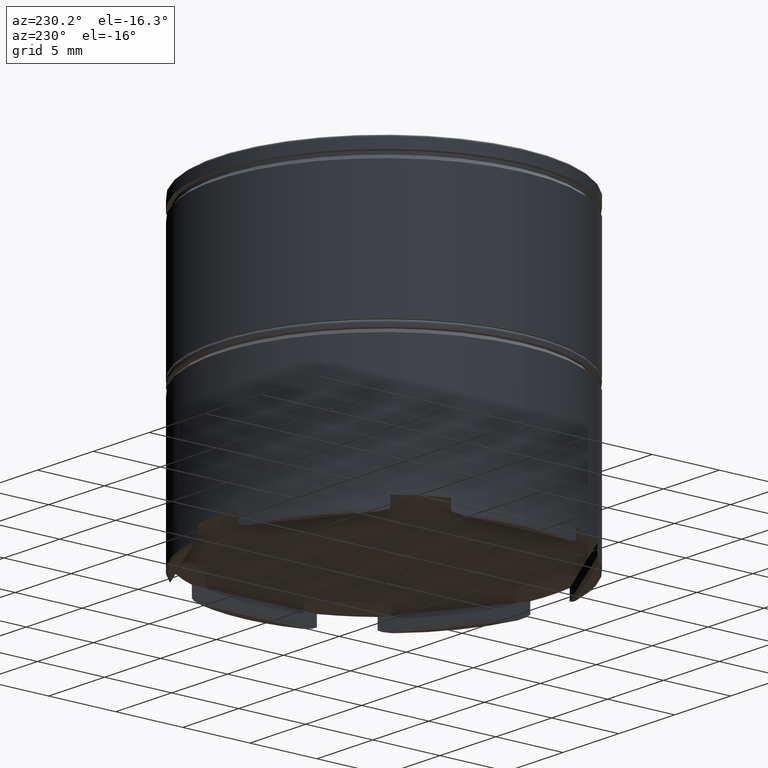
[diagram: clean part render]
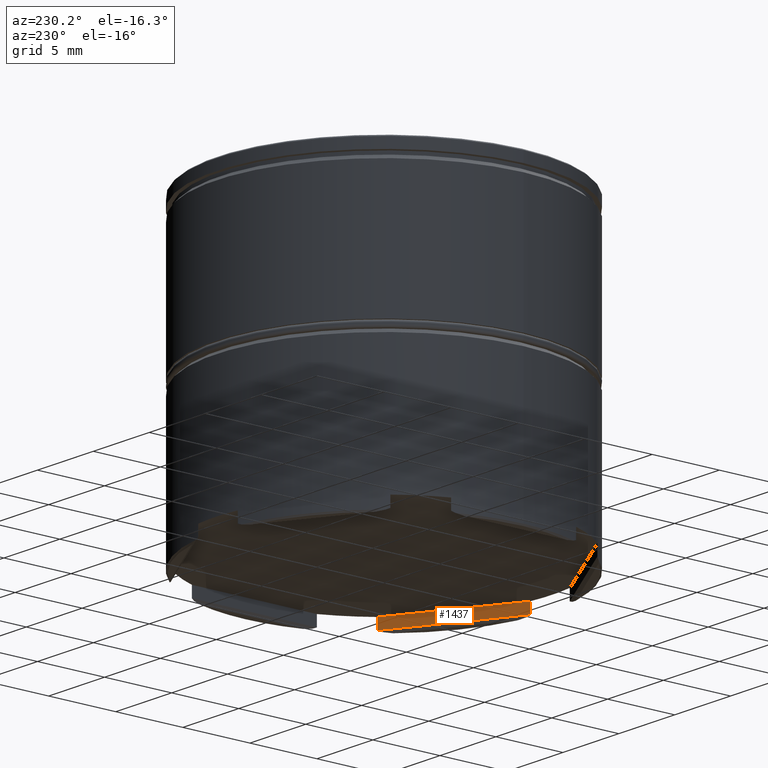
[diagram: same view with one face highlighted and labeled with its STEP entity id]
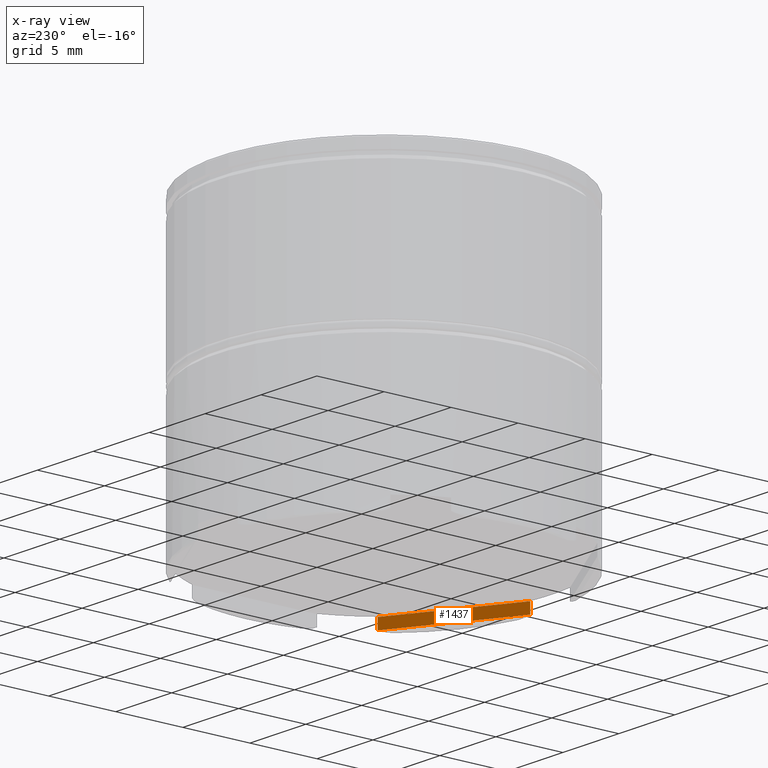
[diagram: x-ray of the same camera — body ghosted, the highlighted face saturated]
A machine part, auxiliary view. The second image highlights one B-rep face of the part: STEP entity #1437.
The next image is the same camera in x-ray: the body ghosted, the highlighted face saturated — about 0% of this face is hidden behind the body in this view.
In plain terms, the highlighted planar face has unit normal (0.5, -0.866, 0).
Its self-contained STEP definition (entity closure, byte-faithful):
#27 = CARTESIAN_POINT ( 'NONE',  ( 1.766701102075388885, -12.37452088833849118, -22.29999999999999716 ) ) ;
#46 = CARTESIAN_POINT ( 'NONE',  ( 9.833298897924615645, -7.717268479460500430, -22.29999999999999716 ) ) ;
#171 = CARTESIAN_POINT ( 'NONE',  ( 9.833298897924615645, -7.717268479460500430, 0.000000000000000000 ) ) ;
#183 = EDGE_CURVE ( 'NONE', #199, #1464, #1169, .T. ) ;
#199 = VERTEX_POINT ( 'NONE', #46 ) ;
#306 = AXIS2_PLACEMENT_3D ( 'NONE', #932, #681, #545 ) ;
#307 = CARTESIAN_POINT ( 'NONE',  ( 9.833298897924617421, -7.717268479460498654, -21.50000000000000000 ) ) ;
#308 = CARTESIAN_POINT ( 'NONE',  ( 1.766701102075386220, -12.37452088833849295, -21.50000000000000000 ) ) ;
#319 = LINE ( 'NONE', #171, #756 ) ;
#352 = DIRECTION ( 'NONE',  ( -0.8660254037844387076, -0.4999999999999998890, 0.000000000000000000 ) ) ;
#363 = ORIENTED_EDGE ( 'NONE', *, *, #999, .T. ) ;
#376 = VECTOR ( 'NONE', #1553, 1000.000000000000114 ) ;
#481 = LINE ( 'NONE', #986, #1235 ) ;
#545 = DIRECTION ( 'NONE',  ( 0.8660254037844387076, 0.4999999999999998335, 0.000000000000000000 ) ) ;
#563 = VERTEX_POINT ( 'NONE', #307 ) ;
#624 = ORIENTED_EDGE ( 'NONE', *, *, #1045, .T. ) ;
#681 = DIRECTION ( 'NONE',  ( 0.4999999999999998335, -0.8660254037844387076, 0.000000000000000000 ) ) ;
#686 = ORIENTED_EDGE ( 'NONE', *, *, #1240, .F. ) ;
#756 = VECTOR ( 'NONE', #1547, 1000.000000000000000 ) ;
#813 = VERTEX_POINT ( 'NONE', #308 ) ;
#828 = DIRECTION ( 'NONE',  ( -0.000000000000000000, -0.000000000000000000, 1.000000000000000000 ) ) ;
#886 = EDGE_LOOP ( 'NONE', ( #363, #1295, #624, #686 ) ) ;
#932 = CARTESIAN_POINT ( 'NONE',  ( 11.60000000000000497, -6.697263122599662388, -21.50000000000000000 ) ) ;
#951 = PLANE ( 'NONE',  #306 ) ;
#986 = CARTESIAN_POINT ( 'NONE',  ( 11.60000000000000497, -6.697263122599662388, -21.50000000000000000 ) ) ;
#999 = EDGE_CURVE ( 'NONE', #563, #199, #319, .T. ) ;
#1045 = EDGE_CURVE ( 'NONE', #1464, #813, #1436, .T. ) ;
#1052 = CARTESIAN_POINT ( 'NONE',  ( 2.005266807797952300, -12.23678491392015211, -22.29999999999999716 ) ) ;
#1169 = LINE ( 'NONE', #1052, #376 ) ;
#1211 = CARTESIAN_POINT ( 'NONE',  ( 1.766701102075388885, -12.37452088833849118, 0.000000000000000000 ) ) ;
#1235 = VECTOR ( 'NONE', #352, 1000.000000000000114 ) ;
#1240 = EDGE_CURVE ( 'NONE', #563, #813, #481, .T. ) ;
#1295 = ORIENTED_EDGE ( 'NONE', *, *, #183, .T. ) ;
#1358 = VECTOR ( 'NONE', #828, 1000.000000000000000 ) ;
#1436 = LINE ( 'NONE', #1211, #1358 ) ;
#1437 = ADVANCED_FACE ( 'NONE', ( #1445 ), #951, .F. ) ;
#1445 = FACE_OUTER_BOUND ( 'NONE', #886, .T. ) ;
#1464 = VERTEX_POINT ( 'NONE', #27 ) ;
#1547 = DIRECTION ( 'NONE',  ( 0.000000000000000000, 0.000000000000000000, -1.000000000000000000 ) ) ;
#1553 = DIRECTION ( 'NONE',  ( -0.8660254037844387076, -0.4999999999999998335, 0.000000000000000000 ) ) ;